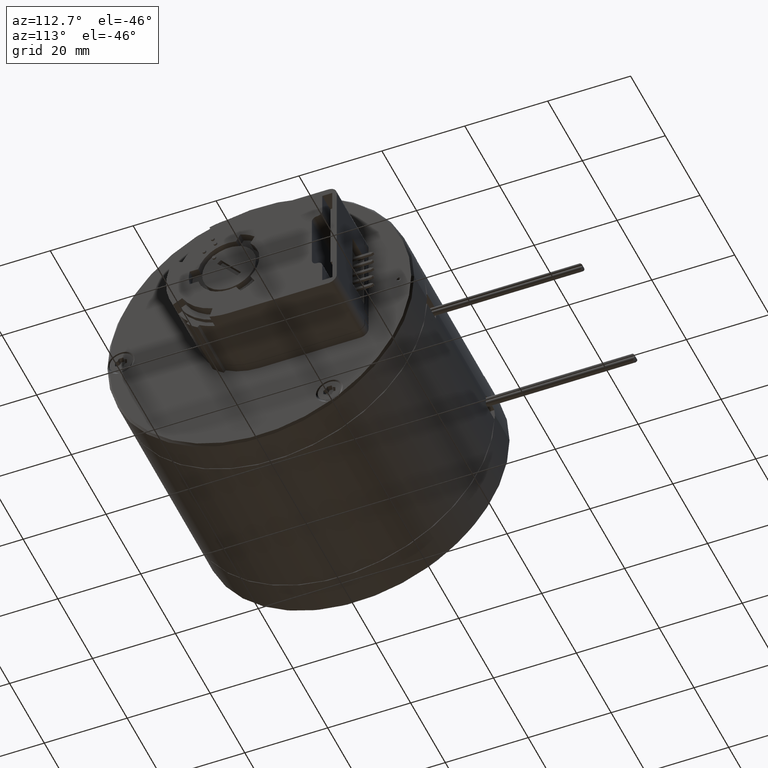
[diagram: clean part render]
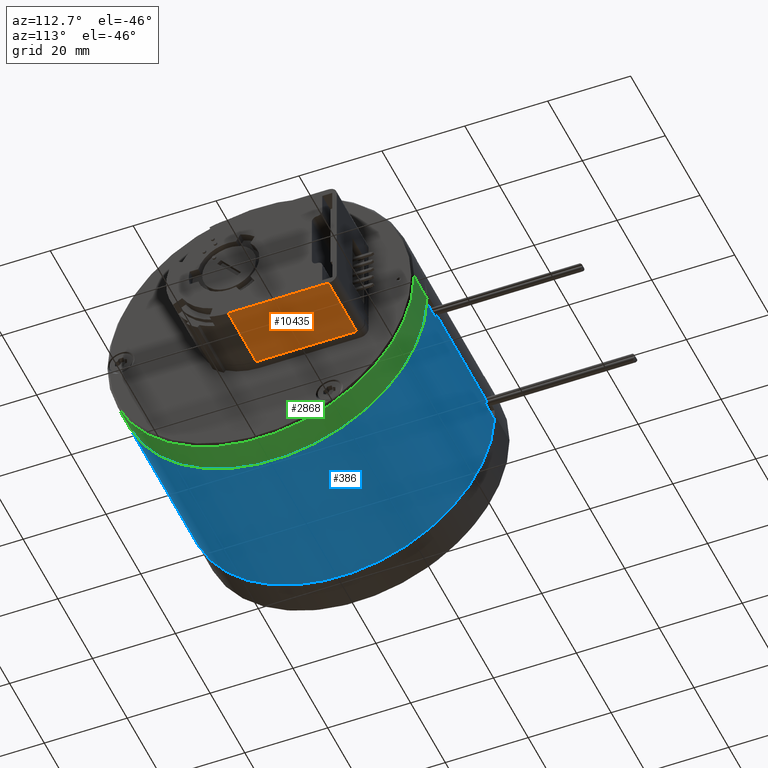
[diagram: same view with three faces highlighted in distinct colors, each labeled with its STEP entity id]
A machine part, auxiliary view with three faces highlighted in distinct colors.
Their STEP definitions:

[orange] entity #10435 — the highlighted planar face has unit normal (0, 0, -1).
#6206=DIRECTION('',(-2.167214235462E-9,0.E0,1.E0));
#6207=VECTOR('',#6206,2.42E1);
#6208=CARTESIAN_POINT('',(-1.950499750905E-9,-1.5E1,-2.42E1));
#6209=LINE('',#6208,#6207);
#6604=DIRECTION('',(0.E0,0.E0,-1.E0));
#6605=VECTOR('',#6604,2.42E1);
#6606=CARTESIAN_POINT('',(1.62E1,-1.5E1,2.697171874390E-14));
#6607=LINE('',#6606,#6605);
#7045=DIRECTION('',(1.E0,0.E0,0.E0));
#7046=VECTOR('',#7045,1.620000005440E1);
#7047=CARTESIAN_POINT('',(-5.439708424910E-8,-1.5E1,-1.447660750877E-14));
#7048=LINE('',#7047,#7046);
#7166=DIRECTION('',(-1.E0,0.E0,0.E0));
#7167=VECTOR('',#7166,1.620000000195E1);
#7168=CARTESIAN_POINT('',(1.62E1,-1.5E1,-2.42E1));
#7169=LINE('',#7168,#7167);
#8415=CARTESIAN_POINT('',(1.62E1,-1.5E1,-2.42E1));
#8416=VERTEX_POINT('',#8415);
#8417=CARTESIAN_POINT('',(1.62E1,-1.5E1,2.697171874390E-14));
#8418=VERTEX_POINT('',#8417);
#8605=CARTESIAN_POINT('',(0.E0,-1.5E1,-4.618527782441E-14));
#8606=VERTEX_POINT('',#8605);
#8607=CARTESIAN_POINT('',(-1.950499750905E-9,-1.5E1,-2.42E1));
#8608=VERTEX_POINT('',#8607);
#10423=CARTESIAN_POINT('',(1.62E1,-1.5E1,0.E0));
#10424=DIRECTION('',(0.E0,-1.E0,0.E0));
#10425=DIRECTION('',(0.E0,0.E0,-1.E0));
#10426=AXIS2_PLACEMENT_3D('',#10423,#10424,#10425);
#10427=PLANE('',#10426);
#10428=ORIENTED_EDGE('',*,*,#9801,.T.);
#10430=ORIENTED_EDGE('',*,*,#10429,.T.);
#10431=ORIENTED_EDGE('',*,*,#9409,.T.);
#10432=ORIENTED_EDGE('',*,*,#10247,.T.);
#10433=EDGE_LOOP('',(#10428,#10430,#10431,#10432));
#10434=FACE_OUTER_BOUND('',#10433,.F.);
#10435=ADVANCED_FACE('',(#10434),#10427,.T.);
#9409=EDGE_CURVE('',#8608,#8606,#6209,.T.);
#9801=EDGE_CURVE('',#8418,#8416,#6607,.T.);
#10247=EDGE_CURVE('',#8606,#8418,#7048,.T.);
#10429=EDGE_CURVE('',#8416,#8608,#7169,.T.);

[blue] entity #386 — the highlighted cylindrical surface (partial cylindrical patch) has radius 37 mm, axis along (-1, 0, 0).
#21=CARTESIAN_POINT('',(0.E0,1.224606353822E-14,0.E0));
#22=DIRECTION('',(-1.E0,0.E0,0.E0));
#23=DIRECTION('',(0.E0,9.991778943575E-1,-4.054054054054E-2));
#24=AXIS2_PLACEMENT_3D('',#21,#22,#23);
#65=CARTESIAN_POINT('',(3.38E1,0.E0,0.E0));
#66=DIRECTION('',(-1.E0,0.E0,0.E0));
#67=DIRECTION('',(0.E0,1.E0,0.E0));
#68=AXIS2_PLACEMENT_3D('',#65,#66,#67);
#70=CARTESIAN_POINT('',(5.E0,1.163376036131E-14,0.E0));
#71=DIRECTION('',(-1.E0,0.E0,0.E0));
#72=DIRECTION('',(0.E0,1.E0,0.E0));
#73=AXIS2_PLACEMENT_3D('',#70,#71,#72);
#75=DIRECTION('',(-1.E0,0.E0,0.E0));
#76=VECTOR('',#75,5.E0);
#77=CARTESIAN_POINT('',(5.E0,3.696958209123E1,-1.5E0));
#78=LINE('',#77,#76);
#79=CARTESIAN_POINT('',(3.88E1,0.E0,0.E0));
#80=DIRECTION('',(-1.E0,0.E0,0.E0));
#81=DIRECTION('',(0.E0,9.991778943575E-1,-4.054054054054E-2));
#82=AXIS2_PLACEMENT_3D('',#79,#80,#81);
#84=DIRECTION('',(-1.E0,0.E0,0.E0));
#85=VECTOR('',#84,5.E0);
#86=CARTESIAN_POINT('',(3.88E1,3.696958209123E1,-1.5E0));
#87=LINE('',#86,#85);
#146=DIRECTION('',(-1.E0,0.E0,0.E0));
#147=VECTOR('',#146,3.88E1);
#148=CARTESIAN_POINT('',(3.88E1,-3.7E1,0.E0));
#149=LINE('',#148,#147);
#159=DIRECTION('',(-1.E0,0.E0,0.E0));
#160=VECTOR('',#159,2.88E1);
#161=CARTESIAN_POINT('',(3.38E1,3.7E1,0.E0));
#162=LINE('',#161,#160);
#190=CARTESIAN_POINT('',(3.88E1,-3.7E1,0.E0));
#191=CARTESIAN_POINT('',(-1.421085471520E-14,-3.7E1,0.E0));
#192=VERTEX_POINT('',#190);
#193=VERTEX_POINT('',#191);
#194=CARTESIAN_POINT('',(5.E0,3.7E1,0.E0));
#195=CARTESIAN_POINT('',(5.E0,3.696958209123E1,-1.5E0));
#196=VERTEX_POINT('',#194);
#197=VERTEX_POINT('',#195);
#198=CARTESIAN_POINT('',(0.E0,3.696958209123E1,-1.5E0));
#199=VERTEX_POINT('',#198);
#204=CARTESIAN_POINT('',(3.38E1,3.7E1,0.E0));
#205=CARTESIAN_POINT('',(3.38E1,3.696958209123E1,-1.5E0));
#206=VERTEX_POINT('',#204);
#207=VERTEX_POINT('',#205);
#208=CARTESIAN_POINT('',(3.88E1,3.696958209123E1,-1.5E0));
#209=VERTEX_POINT('',#208);
#365=CARTESIAN_POINT('',(4.074E1,0.E0,0.E0));
#366=DIRECTION('',(-1.E0,0.E0,0.E0));
#367=DIRECTION('',(0.E0,1.E0,0.E0));
#368=AXIS2_PLACEMENT_3D('',#365,#366,#367);
#369=CYLINDRICAL_SURFACE('',#368,3.7E1);
#371=ORIENTED_EDGE('',*,*,#370,.F.);
#373=ORIENTED_EDGE('',*,*,#372,.T.);
#375=ORIENTED_EDGE('',*,*,#374,.T.);
#376=ORIENTED_EDGE('',*,*,#358,.T.);
#377=ORIENTED_EDGE('',*,*,#259,.T.);
#379=ORIENTED_EDGE('',*,*,#378,.F.);
#381=ORIENTED_EDGE('',*,*,#380,.F.);
#383=ORIENTED_EDGE('',*,*,#382,.T.);
#384=EDGE_LOOP('',(#371,#373,#375,#376,#377,#379,#381,#383));
#385=FACE_OUTER_BOUND('',#384,.F.);
#386=ADVANCED_FACE('',(#385),#369,.T.);
#25=CIRCLE('',#24,3.7E1);
#69=CIRCLE('',#68,3.7E1);
#74=CIRCLE('',#73,3.7E1);
#83=CIRCLE('',#82,3.7E1);
#259=EDGE_CURVE('',#199,#193,#25,.T.);
#358=EDGE_CURVE('',#197,#199,#78,.T.);
#370=EDGE_CURVE('',#206,#207,#69,.T.);
#372=EDGE_CURVE('',#206,#196,#162,.T.);
#374=EDGE_CURVE('',#196,#197,#74,.T.);
#378=EDGE_CURVE('',#192,#193,#149,.T.);
#380=EDGE_CURVE('',#209,#192,#83,.T.);
#382=EDGE_CURVE('',#209,#207,#87,.T.);

[green] entity #2868 — the highlighted cylindrical surface (partial cylindrical patch) has radius 37 mm, axis along (-1, 0, 0).
#2047=CARTESIAN_POINT('',(0.E0,1.224606353822E-14,0.E0));
#2048=DIRECTION('',(1.E0,0.E0,0.E0));
#2049=DIRECTION('',(0.E0,1.E0,0.E0));
#2050=AXIS2_PLACEMENT_3D('',#2047,#2048,#2049);
#2321=CARTESIAN_POINT('',(7.399997375553E0,1.133985515779E-14,0.E0));
#2322=DIRECTION('',(-1.E0,0.E0,0.E0));
#2323=DIRECTION('',(0.E0,-1.E0,0.E0));
#2324=AXIS2_PLACEMENT_3D('',#2321,#2322,#2323);
#2326=DIRECTION('',(-1.E0,-1.327073920677E-7,1.286179593115E-10));
#2327=VECTOR('',#2326,7.399999018100E0);
#2328=CARTESIAN_POINT('',(7.399999018100E0,-3.699999901797E1,
-9.517782497157E-10));
#2329=LINE('',#2328,#2327);
#2330=DIRECTION('',(-1.E0,1.327073901473E-7,-1.286188569919E-10));
#2331=VECTOR('',#2330,7.399999018100E0);
#2332=CARTESIAN_POINT('',(7.399999018100E0,3.699999901797E1,
9.517794154489E-10));
#2333=LINE('',#2332,#2331);
#2414=CARTESIAN_POINT('',(0.E0,3.7E1,0.E0));
#2415=CARTESIAN_POINT('',(-1.341282770614E-14,-3.7E1,0.E0));
#2416=VERTEX_POINT('',#2414);
#2417=VERTEX_POINT('',#2415);
#2456=CARTESIAN_POINT('',(7.399997375553E0,3.7E1,0.E0));
#2457=CARTESIAN_POINT('',(7.399997375553E0,-3.7E1,0.E0));
#2458=VERTEX_POINT('',#2456);
#2459=VERTEX_POINT('',#2457);
#2857=CARTESIAN_POINT('',(8.295E0,1.123025256773E-14,0.E0));
#2858=DIRECTION('',(-1.E0,0.E0,0.E0));
#2859=DIRECTION('',(0.E0,1.E0,0.E0));
#2860=AXIS2_PLACEMENT_3D('',#2857,#2858,#2859);
#2861=CYLINDRICAL_SURFACE('',#2860,3.7E1);
#2862=ORIENTED_EDGE('',*,*,#2835,.F.);
#2863=ORIENTED_EDGE('',*,*,#2526,.T.);
#2864=ORIENTED_EDGE('',*,*,#2511,.F.);
#2865=ORIENTED_EDGE('',*,*,#2523,.F.);
#2866=EDGE_LOOP('',(#2862,#2863,#2864,#2865));
#2867=FACE_OUTER_BOUND('',#2866,.F.);
#2868=ADVANCED_FACE('',(#2867),#2861,.T.);
#2051=CIRCLE('',#2050,3.7E1);
#2325=CIRCLE('',#2324,3.7E1);
#2511=EDGE_CURVE('',#2416,#2417,#2051,.T.);
#2523=EDGE_CURVE('',#2458,#2416,#2333,.T.);
#2526=EDGE_CURVE('',#2459,#2417,#2329,.T.);
#2835=EDGE_CURVE('',#2459,#2458,#2325,.T.);